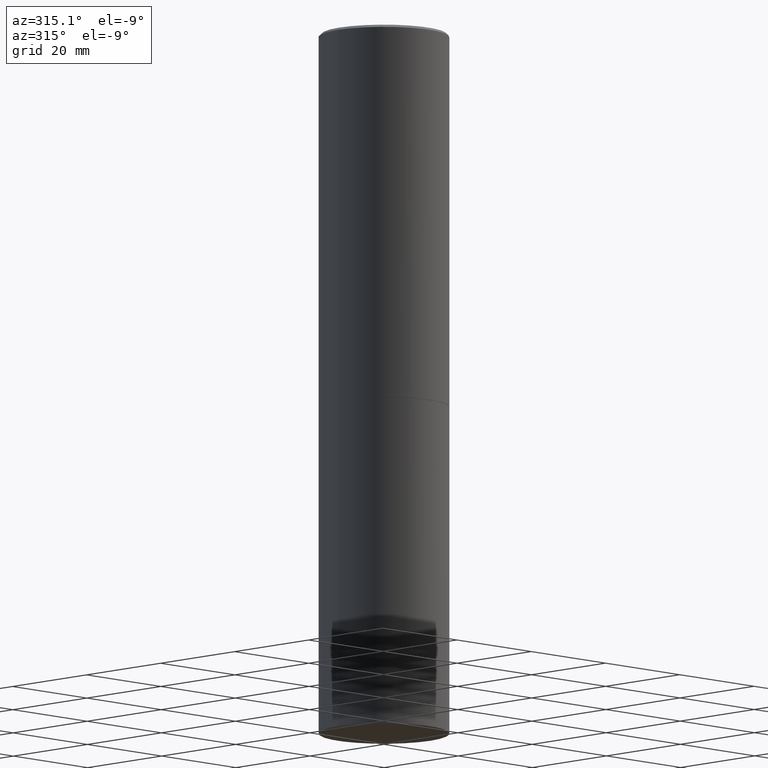
[diagram: clean part render]
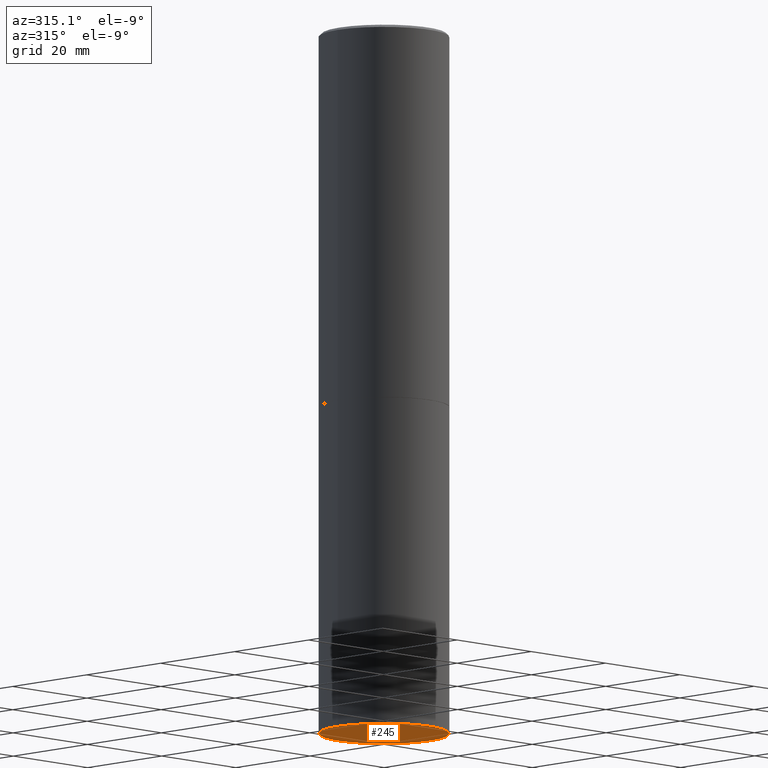
[diagram: same view with one face highlighted and labeled with its STEP entity id]
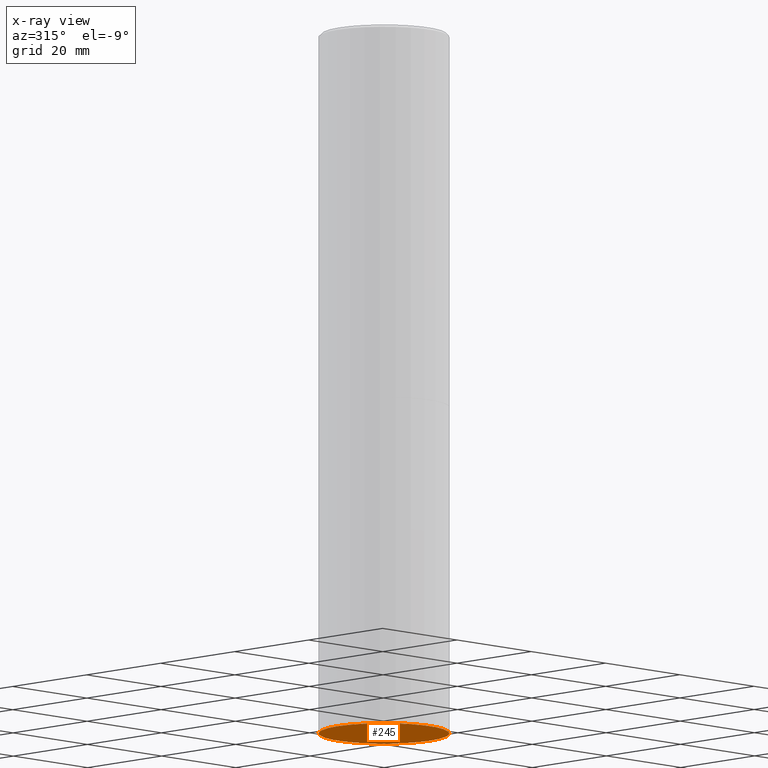
[diagram: x-ray of the same camera — body ghosted, the highlighted face saturated]
A machine part, auxiliary view. The second image highlights one B-rep face of the part: STEP entity #245.
The next image is the same camera in x-ray: the body ghosted, the highlighted face saturated — about 0% of this face is hidden behind the body in this view.
In plain terms, the highlighted planar face has unit normal (0, -0, -1).
Its self-contained STEP definition (entity closure, byte-faithful):
#9 = CARTESIAN_POINT ( 'NONE',  ( -0.4921499999999999764, -1.073032665954166075E-14, -5.315000000000000391 ) ) ;
#12 = DIRECTION ( 'NONE',  ( -1.000000000000000000, 6.982962677686265922E-15, -4.876176775795935793E-29 ) ) ;
#17 = EDGE_CURVE ( 'NONE', #19, #57, #228, .T. ) ;
#19 = VERTEX_POINT ( 'NONE', #197 ) ;
#26 = FACE_OUTER_BOUND ( 'NONE', #290, .T. ) ;
#57 = VERTEX_POINT ( 'NONE', #9 ) ;
#80 = DIRECTION ( 'NONE',  ( -2.445468806185136597E-29, 3.491481338843145583E-15, 1.000000000000000000 ) ) ;
#90 = CARTESIAN_POINT ( 'NONE',  ( 1.299766670487400218E-28, -1.855722331595131973E-14, -5.315000000000000391 ) ) ;
#110 = AXIS2_PLACEMENT_3D ( 'NONE', #332, #80, #366 ) ;
#132 = CARTESIAN_POINT ( 'NONE',  ( 3.436665081823425939E-15, 0.4921499999999813801, -5.315000000000003055 ) ) ;
#162 = CIRCLE ( 'NONE', #110, 0.4921499999999999764 ) ;
#185 = EDGE_CURVE ( 'NONE', #57, #19, #162, .T. ) ;
#197 = CARTESIAN_POINT ( 'NONE',  ( 0.4921499999999999764, -2.199388839777461709E-14, -5.315000000000000391 ) ) ;
#216 = PLANE ( 'NONE',  #261 ) ;
#224 = DIRECTION ( 'NONE',  ( -2.445468806185136597E-29, 3.491481338843145583E-15, 1.000000000000000000 ) ) ;
#228 = CIRCLE ( 'NONE', #362, 0.4921499999999999764 ) ;
#245 = ADVANCED_FACE ( 'NONE', ( #26 ), #216, .T. ) ;
#248 = ORIENTED_EDGE ( 'NONE', *, *, #185, .F. ) ;
#261 = AXIS2_PLACEMENT_3D ( 'NONE', #132, #363, #12 ) ;
#282 = DIRECTION ( 'NONE',  ( 1.000000000000000000, -6.982962677686265922E-15, 0.000000000000000000 ) ) ;
#290 = EDGE_LOOP ( 'NONE', ( #293, #248 ) ) ;
#293 = ORIENTED_EDGE ( 'NONE', *, *, #17, .F. ) ;
#332 = CARTESIAN_POINT ( 'NONE',  ( 1.299766670487400218E-28, -1.855722331595131973E-14, -5.315000000000000391 ) ) ;
#362 = AXIS2_PLACEMENT_3D ( 'NONE', #90, #224, #282 ) ;
#363 = DIRECTION ( 'NONE',  ( 2.438088387897960049E-29, -3.491481338843145188E-15, -1.000000000000000000 ) ) ;
#366 = DIRECTION ( 'NONE',  ( 1.000000000000000000, -6.982962677686265922E-15, 0.000000000000000000 ) ) ;